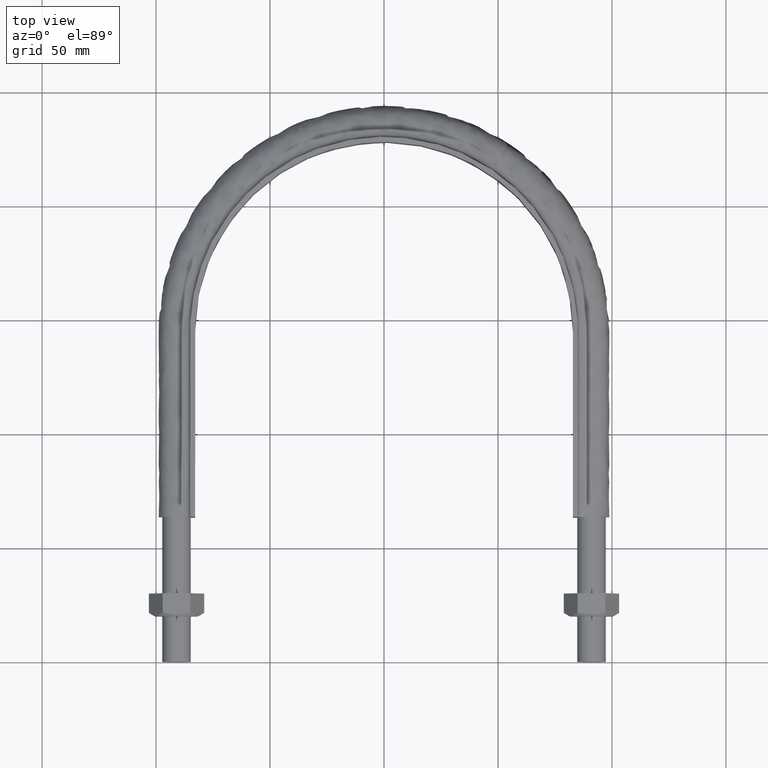
[diagram: clean part render]
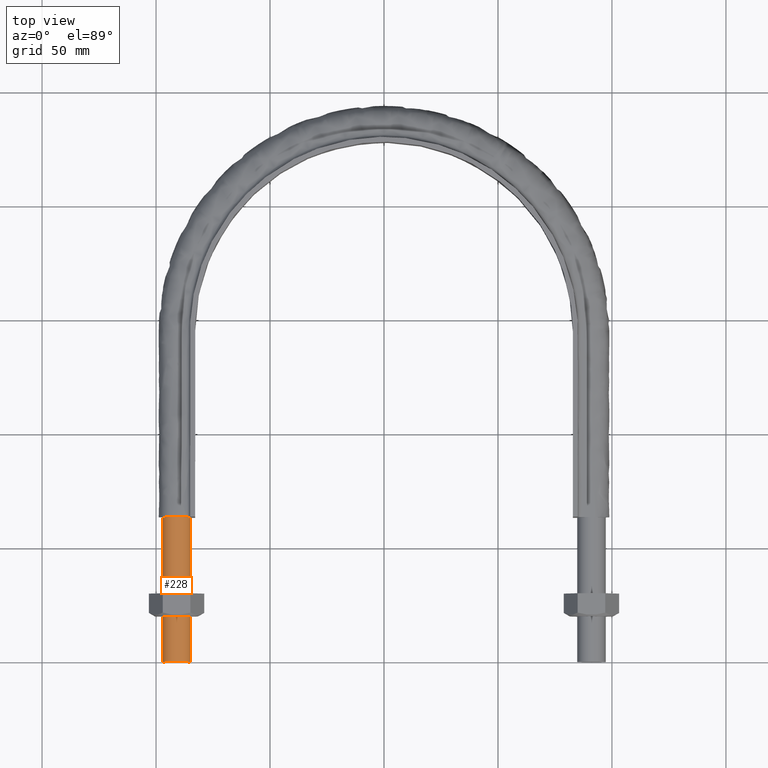
[diagram: same view with one face highlighted and labeled with its STEP entity id]
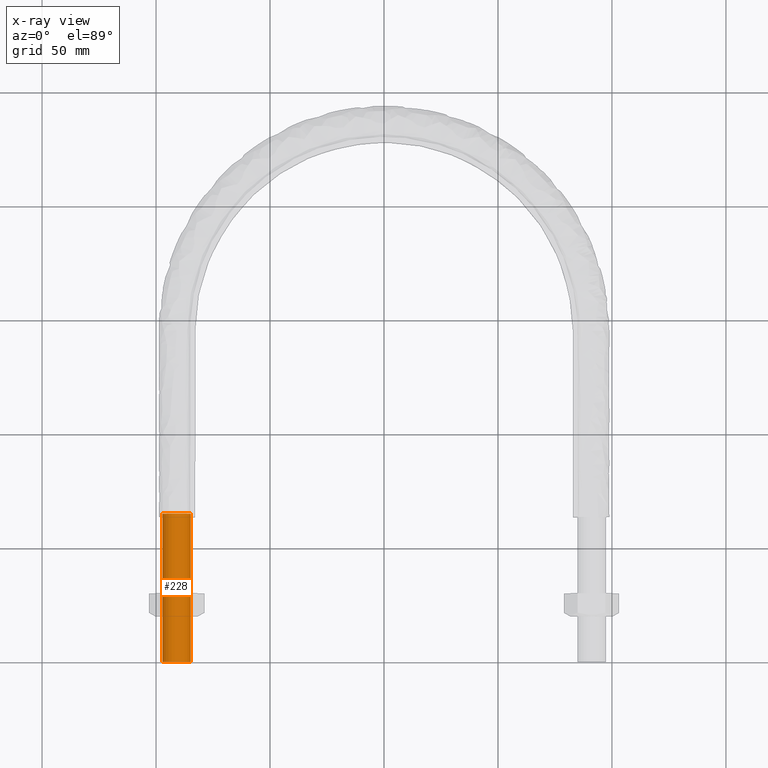
[diagram: x-ray of the same camera — body ghosted, the highlighted face saturated]
A machine part, top view. The second image highlights one B-rep face of the part: STEP entity #228.
The next image is the same camera in x-ray: the body ghosted, the highlighted face saturated — about 0% of this face is hidden behind the body in this view.
In plain terms, the highlighted cylindrical surface (bore or boss wall) has radius 6.25 mm, axis along (0, 1, -0).
Its self-contained STEP definition (entity closure, byte-faithful):
#228 = ADVANCED_FACE( '', ( #280, #281 ), #282, .T. );
#280 = FACE_OUTER_BOUND( '', #1275, .T. );
#281 = FACE_OUTER_BOUND( '', #1276, .T. );
#282 = CYLINDRICAL_SURFACE( '', #1277, 6.25000000000001 );
#1275 = EDGE_LOOP( '', ( #1413 ) );
#1276 = EDGE_LOOP( '', ( #1414 ) );
#1277 = AXIS2_PLACEMENT_3D( '', #1415, #1416, #1417 );
#1413 = ORIENTED_EDGE( '', *, *, #1618, .T. );
#1414 = ORIENTED_EDGE( '', *, *, #1619, .F. );
#1415 = CARTESIAN_POINT( '', ( -91.0000000000000, 65.0000000000000, -1.98998532496136E-014 ) );
#1416 = DIRECTION( '', ( 2.44921270764475E-016, 1.00000000000000, -3.06151588455594E-016 ) );
#1417 = DIRECTION( '', ( 1.00000000000000, -2.44921270764475E-016, 0.000000000000000 ) );
#1618 = EDGE_CURVE( '', #1697, #1697, #1698, .T. );
#1619 = EDGE_CURVE( '', #1699, #1699, #1700, .T. );
#1697 = VERTEX_POINT( '', #1983 );
#1698 = CIRCLE( '', #1984, 6.25000000000001 );
#1699 = VERTEX_POINT( '', #1985 );
#1700 = CIRCLE( '', #1986, 6.25000000000001 );
#1983 = CARTESIAN_POINT( '', ( -84.7500000000000, 65.0000000000000, -1.98998532496136E-014 ) );
#1984 = AXIS2_PLACEMENT_3D( '', #2234, #2235, #2236 );
#1985 = CARTESIAN_POINT( '', ( -84.7500000000000, 9.61315987750566E-015, 0.000000000000000 ) );
#1986 = AXIS2_PLACEMENT_3D( '', #2237, #2238, #2239 );
#2234 = CARTESIAN_POINT( '', ( -91.0000000000000, 65.0000000000000, -1.98998532496136E-014 ) );
#2235 = DIRECTION( '', ( -2.44921270764475E-016, -1.00000000000000, 3.06151588455594E-016 ) );
#2236 = DIRECTION( '', ( 1.00000000000000, -2.44921270764475E-016, 0.000000000000000 ) );
#2237 = CARTESIAN_POINT( '', ( -91.0000000000000, 1.11439178197836E-014, 0.000000000000000 ) );
#2238 = DIRECTION( '', ( -2.44921270764475E-016, -1.00000000000000, 3.06151588455594E-016 ) );
#2239 = DIRECTION( '', ( 1.00000000000000, -2.44921270764475E-016, 0.000000000000000 ) );